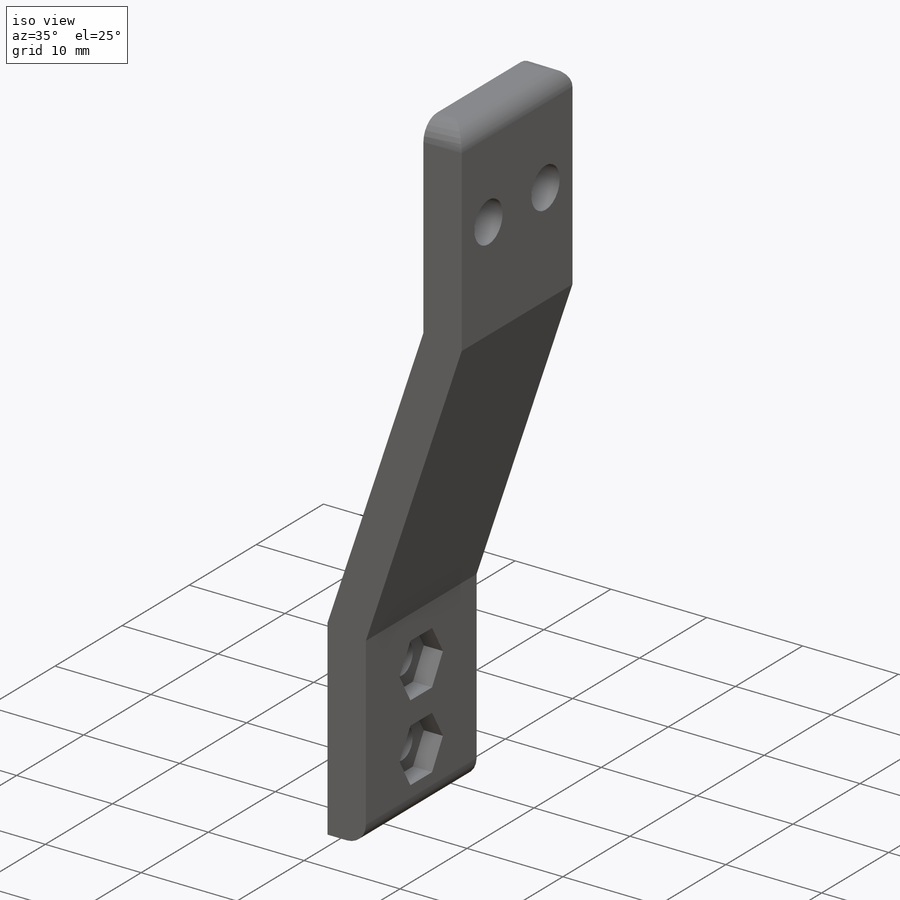
[diagram: iso view]
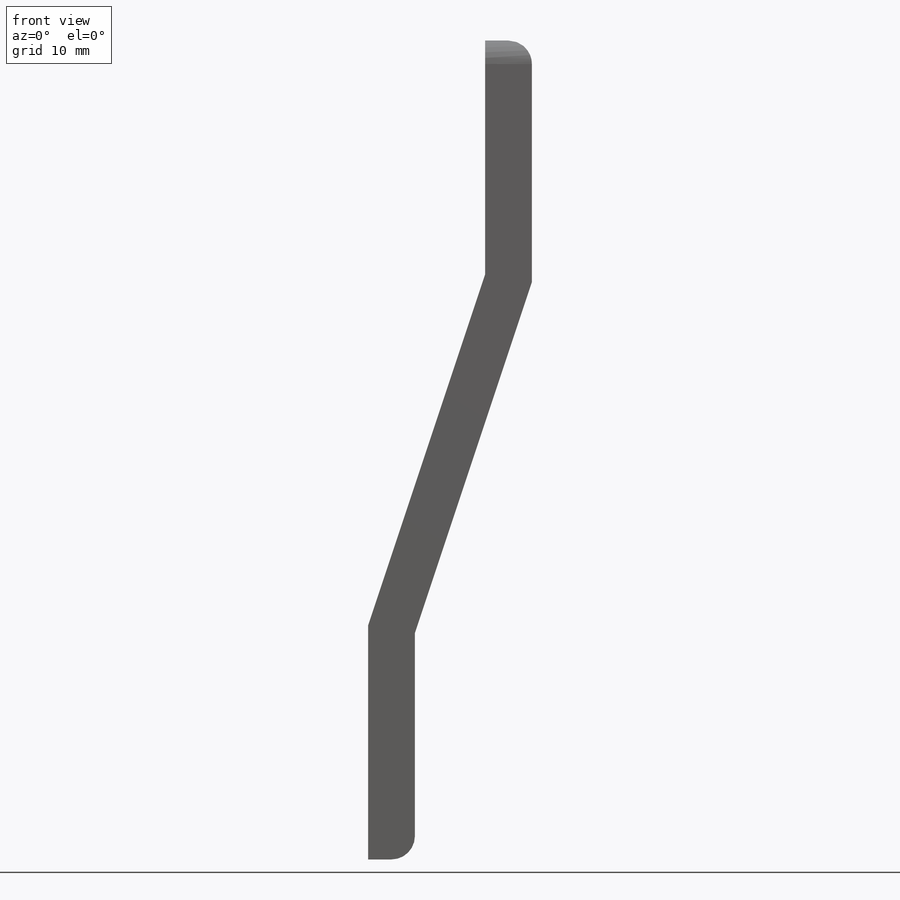
[diagram: front view]
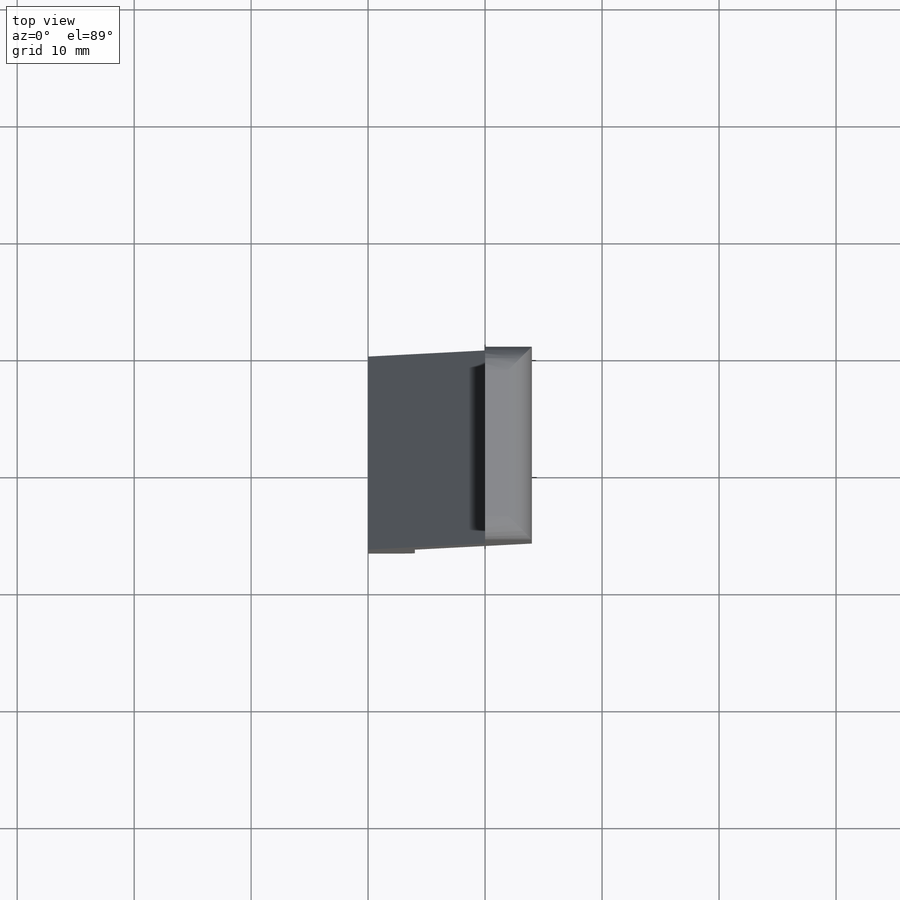
[diagram: top view]
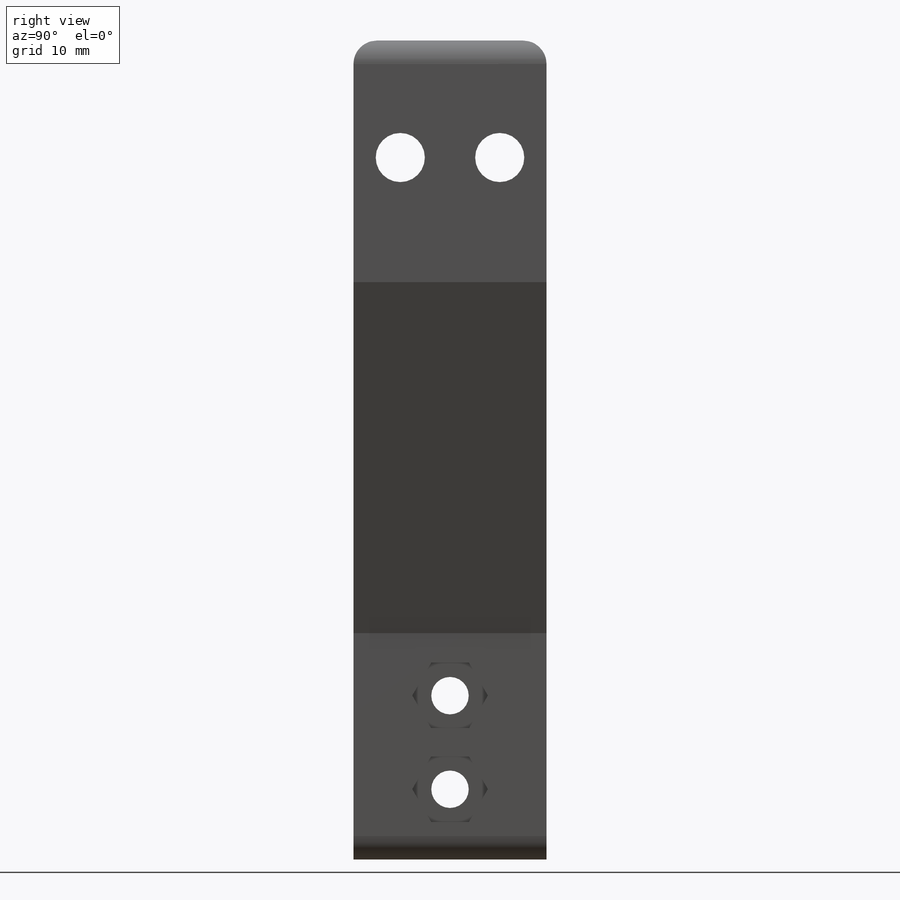
[diagram: right view]
SOLIDWORKS PART (.sldprt)
format: sldprt  version: not decoded by parser v0  size: 195,584 bytes
history: native  units: mm
features: sketch x4, cut_extrude x3, fillet x2, material x1, extrude x1 (+11 scaffold rows collapsed)
feature tree (22):
  scaffold x11  (default folders/planes/origin — collapsed)
  material  "Material <not specified>"
  sketch  "Sketch3"  dims[D1=4.0mm D2=4.0mm D3=10.0mm D4=70.0mm D5=20.0mm D6=20.0mm D7=4.0mm]
  extrude  "Boss-Extrude2"  Depth=16.5mm
  sketch  "Sketch4"  dims[D1=4.2mm D2=10.0mm D3=4.0mm D4=4.0mm]
  cut_extrude  "Cut-Extrude2"  Depth=16.5mm
  sketch  "Sketch5"  dims[D1=3.2mm D2=8.0mm D3=6.0mm D4=8.25mm]
  cut_extrude  "Cut-Extrude3"  [1 undecoded]
  fillet  "Fillet1"  Radius=2mm
  fillet  "Fillet2"  Radius=2mm
  sketch  "Sketch6"  dims[D1=5.6mm]
  cut_extrude  "Cut-Extrude4"  Depth=2mm
decode coverage: 9 of 10 modeling features carry decoded parameters
note: 1 parameter value undecoded
note: suppression state not decoded; provenance and decode notes live in map.json
